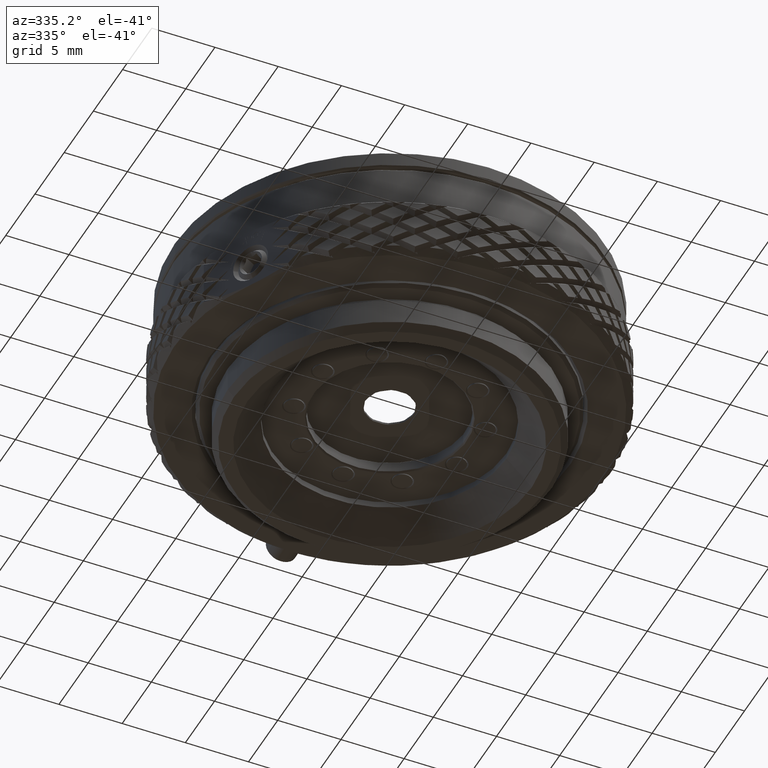
[diagram: clean part render]
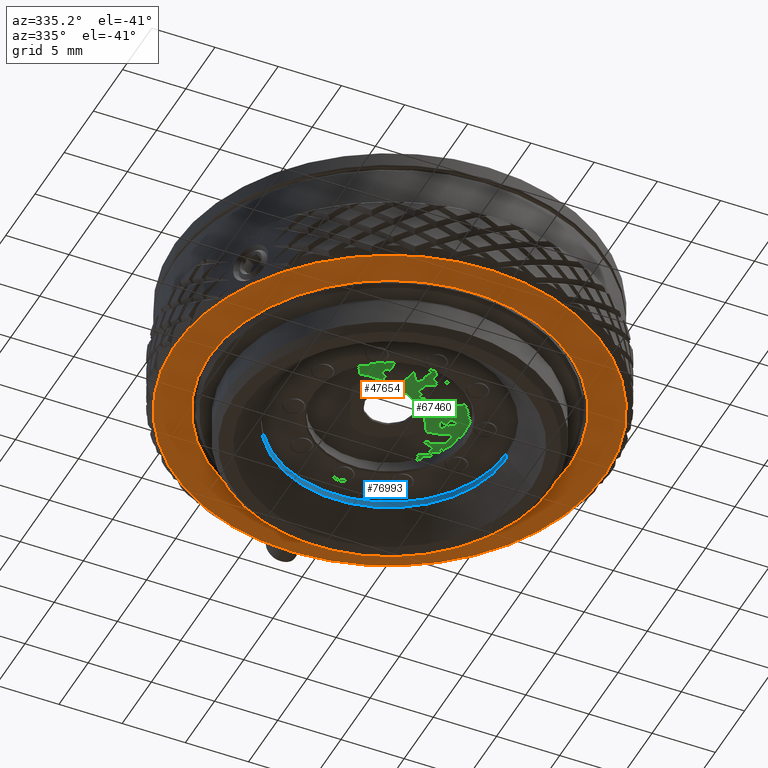
[diagram: same view with three faces highlighted in distinct colors, each labeled with its STEP entity id]
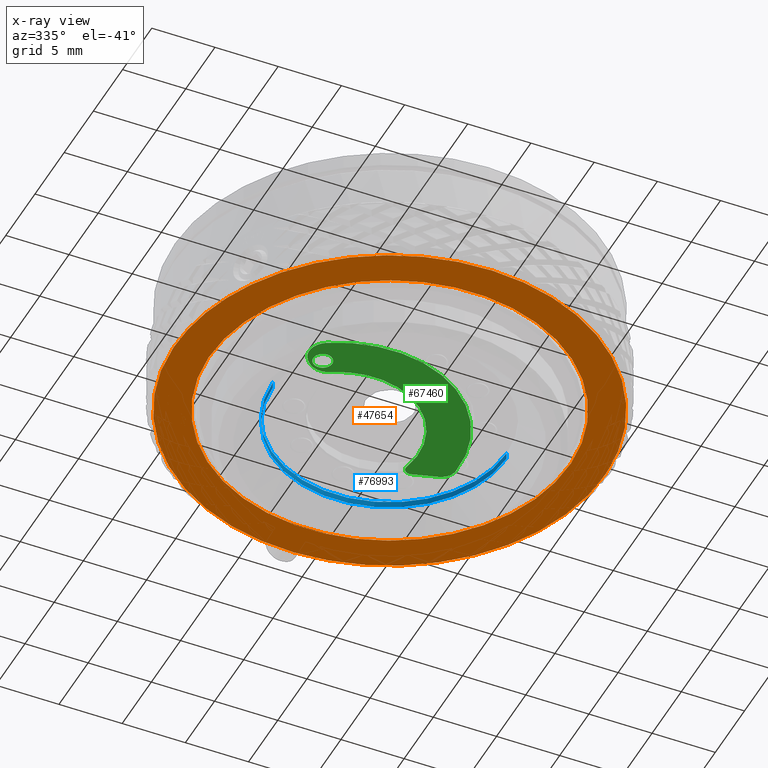
[diagram: x-ray of the same camera — body ghosted, the three highlighted faces saturated]
A machine part, auxiliary view with three faces highlighted in distinct colors.
The next image is the same camera in x-ray (body ghosted, the three faces saturated) — at least one of them is partly hidden behind the body in this view.
Their STEP definitions:

[orange] entity #47654 — the highlighted planar face has unit normal (0, 0, 1).
#995 = CARTESIAN_POINT ( 'NONE',  ( 0.000000000000000000, 0.000000000000000000, -4.150000000000000355 ) ) ;
#2328 = CARTESIAN_POINT ( 'NONE',  ( -14.72243186433542306, -8.500000000000076383, -4.150000000000000355 ) ) ;
#9874 = CIRCLE ( 'NONE', #77246, 14.25000000000003197 ) ;
#12894 = FACE_BOUND ( 'NONE', #60496, .T. ) ;
#14532 = CARTESIAN_POINT ( 'NONE',  ( 16.99999999999997158, 0.000000000000000000, -4.150000000000000355 ) ) ;
#16291 = DIRECTION ( 'NONE',  ( 1.000000000000000000, 0.000000000000000000, 0.000000000000000000 ) ) ;
#17184 = VERTEX_POINT ( 'NONE', #2328 ) ;
#18700 = AXIS2_PLACEMENT_3D ( 'NONE', #33750, #60038, #78553 ) ;
#18861 = CARTESIAN_POINT ( 'NONE',  ( 0.000000000000000000, 0.000000000000000000, -4.150000000000000355 ) ) ;
#20525 = CARTESIAN_POINT ( 'NONE',  ( 0.000000000000000000, 0.000000000000000000, -4.150000000000000355 ) ) ;
#21435 = ORIENTED_EDGE ( 'NONE', *, *, #65567, .T. ) ;
#23748 = ORIENTED_EDGE ( 'NONE', *, *, #43842, .T. ) ;
#25401 = PLANE ( 'NONE',  #70589 ) ;
#25909 = AXIS2_PLACEMENT_3D ( 'NONE', #18861, #72701, #58108 ) ;
#26399 = DIRECTION ( 'NONE',  ( 0.000000000000000000, 0.000000000000000000, 1.000000000000000000 ) ) ;
#33750 = CARTESIAN_POINT ( 'NONE',  ( 0.000000000000000000, 0.000000000000000000, -4.150000000000000355 ) ) ;
#35772 = CARTESIAN_POINT ( 'NONE',  ( 14.25000000000003197, 1.745121688784982172E-15, -4.150000000000000355 ) ) ;
#38877 = AXIS2_PLACEMENT_3D ( 'NONE', #995, #26399, #52669 ) ;
#40062 = DIRECTION ( 'NONE',  ( 0.000000000000000000, 0.000000000000000000, 1.000000000000000000 ) ) ;
#41606 = VERTEX_POINT ( 'NONE', #45875 ) ;
#43842 = EDGE_CURVE ( 'NONE', #17184, #78226, #68535, .T. ) ;
#45205 = VERTEX_POINT ( 'NONE', #35772 ) ;
#45875 = CARTESIAN_POINT ( 'NONE',  ( -14.25000000000003197, 0.000000000000000000, -4.150000000000000355 ) ) ;
#47654 = ADVANCED_FACE ( 'NONE', ( #12894, #65448 ), #25401, .F. ) ;
#48116 = VERTEX_POINT ( 'NONE', #14532 ) ;
#49072 = CARTESIAN_POINT ( 'NONE',  ( 0.000000000000000000, 0.000000000000000000, -4.150000000000000355 ) ) ;
#52669 = DIRECTION ( 'NONE',  ( 1.000000000000000000, 0.000000000000000000, 0.000000000000000000 ) ) ;
#54715 = AXIS2_PLACEMENT_3D ( 'NONE', #49072, #75312, #16291 ) ;
#55895 = CIRCLE ( 'NONE', #18700, 16.99999999999997158 ) ;
#58108 = DIRECTION ( 'NONE',  ( 1.000000000000000000, 2.664535259100375303E-15, 0.000000000000000000 ) ) ;
#58864 = CIRCLE ( 'NONE', #54715, 16.99999999999997158 ) ;
#59319 = DIRECTION ( 'NONE',  ( 0.000000000000000000, 0.000000000000000000, 1.000000000000000000 ) ) ;
#59654 = EDGE_CURVE ( 'NONE', #48116, #17184, #55895, .T. ) ;
#60038 = DIRECTION ( 'NONE',  ( -0.000000000000000000, -0.000000000000000000, -1.000000000000000000 ) ) ;
#60496 = EDGE_LOOP ( 'NONE', ( #68680, #67915 ) ) ;
#65448 = FACE_OUTER_BOUND ( 'NONE', #74081, .T. ) ;
#65567 = EDGE_CURVE ( 'NONE', #78226, #48116, #58864, .T. ) ;
#66303 = CARTESIAN_POINT ( 'NONE',  ( 0.000000000000000000, 0.000000000000000000, -4.150000000000000355 ) ) ;
#67915 = ORIENTED_EDGE ( 'NONE', *, *, #73149, .T. ) ;
#68535 = CIRCLE ( 'NONE', #25909, 16.99999999999997158 ) ;
#68680 = ORIENTED_EDGE ( 'NONE', *, *, #75430, .T. ) ;
#70589 = AXIS2_PLACEMENT_3D ( 'NONE', #66303, #40062, #79226 ) ;
#72701 = DIRECTION ( 'NONE',  ( -0.000000000000000000, -0.000000000000000000, -1.000000000000000000 ) ) ;
#73149 = EDGE_CURVE ( 'NONE', #45205, #41606, #9874, .T. ) ;
#74081 = EDGE_LOOP ( 'NONE', ( #23748, #21435, #76259 ) ) ;
#74613 = CIRCLE ( 'NONE', #38877, 14.25000000000003197 ) ;
#75312 = DIRECTION ( 'NONE',  ( -0.000000000000000000, -0.000000000000000000, -1.000000000000000000 ) ) ;
#75430 = EDGE_CURVE ( 'NONE', #41606, #45205, #74613, .T. ) ;
#76259 = ORIENTED_EDGE ( 'NONE', *, *, #59654, .T. ) ;
#77246 = AXIS2_PLACEMENT_3D ( 'NONE', #20525, #59319, #79122 ) ;
#78226 = VERTEX_POINT ( 'NONE', #81607 ) ;
#78553 = DIRECTION ( 'NONE',  ( 1.000000000000000000, 0.000000000000000000, 0.000000000000000000 ) ) ;
#79122 = DIRECTION ( 'NONE',  ( 1.000000000000000000, 0.000000000000000000, 0.000000000000000000 ) ) ;
#79226 = DIRECTION ( 'NONE',  ( 1.000000000000000000, 0.000000000000000000, -0.000000000000000000 ) ) ;
#81607 = CARTESIAN_POINT ( 'NONE',  ( -16.99999999999997158, 2.081899558550496730E-15, -4.150000000000000355 ) ) ;

[blue] entity #76993 — the highlighted cylindrical surface (partial cylindrical patch) has radius 9.25 mm, axis along (0, 0, 1).
#927 = LINE ( 'NONE', #60368, #19588 ) ;
#2297 = ORIENTED_EDGE ( 'NONE', *, *, #14872, .F. ) ;
#2447 = CYLINDRICAL_SURFACE ( 'NONE', #29311, 9.250000000000000000 ) ;
#4408 = AXIS2_PLACEMENT_3D ( 'NONE', #61479, #41284, #21843 ) ;
#6247 = VERTEX_POINT ( 'NONE', #49626 ) ;
#6515 = DIRECTION ( 'NONE',  ( -0.000000000000000000, -0.000000000000000000, 1.000000000000000000 ) ) ;
#13389 = CARTESIAN_POINT ( 'NONE',  ( -9.250000000000000000, 1.132798289211301501E-15, 0.000000000000000000 ) ) ;
#13667 = ORIENTED_EDGE ( 'NONE', *, *, #34264, .T. ) ;
#14872 = EDGE_CURVE ( 'NONE', #49909, #6247, #74169, .T. ) ;
#19093 = AXIS2_PLACEMENT_3D ( 'NONE', #46499, #72725, #59836 ) ;
#19588 = VECTOR ( 'NONE', #33211, 1000.000000000000000 ) ;
#19686 = ORIENTED_EDGE ( 'NONE', *, *, #38101, .F. ) ;
#20138 = ORIENTED_EDGE ( 'NONE', *, *, #75799, .T. ) ;
#21843 = DIRECTION ( 'NONE',  ( 1.000000000000000000, 0.000000000000000000, 0.000000000000000000 ) ) ;
#24809 = VERTEX_POINT ( 'NONE', #74724 ) ;
#29311 = AXIS2_PLACEMENT_3D ( 'NONE', #67896, #75658, #42541 ) ;
#33211 = DIRECTION ( 'NONE',  ( -0.000000000000000000, -0.000000000000000000, 1.000000000000000000 ) ) ;
#34264 = EDGE_CURVE ( 'NONE', #24809, #81231, #62142, .T. ) ;
#36327 = CARTESIAN_POINT ( 'NONE',  ( 9.250000000000000000, 0.000000000000000000, 1.999999999999994893 ) ) ;
#38101 = EDGE_CURVE ( 'NONE', #24809, #49909, #64673, .T. ) ;
#41284 = DIRECTION ( 'NONE',  ( -0.000000000000000000, -0.000000000000000000, -1.000000000000000000 ) ) ;
#42541 = DIRECTION ( 'NONE',  ( 1.000000000000000000, 0.000000000000000000, 0.000000000000000000 ) ) ;
#42772 = VECTOR ( 'NONE', #6515, 1000.000000000000000 ) ;
#46499 = CARTESIAN_POINT ( 'NONE',  ( 0.000000000000000000, 0.000000000000000000, 2.500000000000000000 ) ) ;
#49626 = CARTESIAN_POINT ( 'NONE',  ( 9.250000000000000000, 0.000000000000000000, 2.500000000000000000 ) ) ;
#49909 = VERTEX_POINT ( 'NONE', #52154 ) ;
#52154 = CARTESIAN_POINT ( 'NONE',  ( -9.250000000000000000, 1.132798289211301501E-15, 2.500000000000000000 ) ) ;
#54589 = EDGE_LOOP ( 'NONE', ( #19686, #13667, #20138, #2297 ) ) ;
#59836 = DIRECTION ( 'NONE',  ( 1.000000000000000000, 0.000000000000000000, 0.000000000000000000 ) ) ;
#60368 = CARTESIAN_POINT ( 'NONE',  ( 9.250000000000000000, 0.000000000000000000, 0.000000000000000000 ) ) ;
#61479 = CARTESIAN_POINT ( 'NONE',  ( 0.000000000000000000, 0.000000000000000000, 1.999999999999994893 ) ) ;
#62142 = CIRCLE ( 'NONE', #4408, 9.250000000000000000 ) ;
#63153 = FACE_OUTER_BOUND ( 'NONE', #54589, .T. ) ;
#64673 = LINE ( 'NONE', #13389, #42772 ) ;
#67896 = CARTESIAN_POINT ( 'NONE',  ( 0.000000000000000000, 0.000000000000000000, 0.000000000000000000 ) ) ;
#72725 = DIRECTION ( 'NONE',  ( -0.000000000000000000, -0.000000000000000000, -1.000000000000000000 ) ) ;
#74169 = CIRCLE ( 'NONE', #19093, 9.250000000000000000 ) ;
#74724 = CARTESIAN_POINT ( 'NONE',  ( -9.250000000000000000, 1.132798289211301501E-15, 1.999999999999994893 ) ) ;
#75658 = DIRECTION ( 'NONE',  ( -0.000000000000000000, -0.000000000000000000, 1.000000000000000000 ) ) ;
#75799 = EDGE_CURVE ( 'NONE', #81231, #6247, #927, .T. ) ;
#76993 = ADVANCED_FACE ( 'NONE', ( #63153 ), #2447, .F. ) ;
#81231 = VERTEX_POINT ( 'NONE', #36327 ) ;

[green] entity #67460 — the highlighted planar face has unit normal (0, 0, 1).
#967 = CARTESIAN_POINT ( 'NONE',  ( -6.389340301055798754, -2.605002450996976027, -1.500000000000000000 ) ) ;
#1058 = DIRECTION ( 'NONE',  ( -2.193465197359583289E-18, 6.538227302660444188E-18, -1.000000000000000000 ) ) ;
#1247 = AXIS2_PLACEMENT_3D ( 'NONE', #16459, #75927, #56957 ) ;
#5522 = CARTESIAN_POINT ( 'NONE',  ( 3.951659026361565630, 6.034081970587055643, -1.500000000000000000 ) ) ;
#5767 = ORIENTED_EDGE ( 'NONE', *, *, #8912, .T. ) ;
#6462 = ORIENTED_EDGE ( 'NONE', *, *, #60245, .F. ) ;
#7093 = DIRECTION ( 'NONE',  ( -0.4368701808243428686, 0.8995245661495331335, 0.000000000000000000 ) ) ;
#8474 = VERTEX_POINT ( 'NONE', #8816 ) ;
#8816 = CARTESIAN_POINT ( 'NONE',  ( 6.727397174603402696, 5.010674798145960729, -1.500000000000000000 ) ) ;
#8912 = EDGE_CURVE ( 'NONE', #51541, #41918, #75672, .T. ) ;
#11976 = DIRECTION ( 'NONE',  ( -0.9382590085631673515, 0.3459335671051050332, 4.319830774745732219E-18 ) ) ;
#12975 = CARTESIAN_POINT ( 'NONE',  ( 7.512181098517611844, 3.869601528755528097, -1.500000000000000000 ) ) ;
#15495 = VECTOR ( 'NONE', #50844, 1000.000000000000000 ) ;
#16329 = CIRCLE ( 'NONE', #64480, 1.500000000000000222 ) ;
#16459 = CARTESIAN_POINT ( 'NONE',  ( -6.657395614066074607, -2.163118960624643705, -1.500000000000000000 ) ) ;
#18498 = CARTESIAN_POINT ( 'NONE',  ( -6.985048249684330912, -1.488475536012494826, -1.500000000000000000 ) ) ;
#20312 = ORIENTED_EDGE ( 'NONE', *, *, #51906, .T. ) ;
#20457 = DIRECTION ( 'NONE',  ( 2.193465197359582904E-18, -6.538227302660443417E-18, 1.000000000000000000 ) ) ;
#22848 = CARTESIAN_POINT ( 'NONE',  ( 0.6979948657501009457, -1.743567907530704009, -1.500000000000000000 ) ) ;
#23013 = VERTEX_POINT ( 'NONE', #22848 ) ;
#23592 = VERTEX_POINT ( 'NONE', #25701 ) ;
#25701 = CARTESIAN_POINT ( 'NONE',  ( -7.374984374968407863, -4.021450318140683322, -1.500000000000000000 ) ) ;
#26921 = CARTESIAN_POINT ( 'NONE',  ( -6.657395614066074607, -2.163118960624643705, -1.500000000000000000 ) ) ;
#27243 = CIRCLE ( 'NONE', #42420, 6.375000000000000888 ) ;
#27371 = CIRCLE ( 'NONE', #1247, 0.7499999999999985567 ) ;
#29215 = DIRECTION ( 'NONE',  ( -2.193465197359583289E-18, 6.538227302660444188E-18, -1.000000000000000000 ) ) ;
#29339 = CARTESIAN_POINT ( 'NONE',  ( -2.087052537005079866, 3.990901201672572451, -1.500000000000000000 ) ) ;
#30169 = EDGE_CURVE ( 'NONE', #55243, #23013, #47992, .T. ) ;
#30504 = CIRCLE ( 'NONE', #78610, 0.7499999999999985567 ) ;
#30991 = CARTESIAN_POINT ( 'NONE',  ( -2.087052537005079866, 3.990901201672572451, -1.500000000000000000 ) ) ;
#30999 = EDGE_CURVE ( 'NONE', #23013, #41918, #27243, .T. ) ;
#31028 = DIRECTION ( 'NONE',  ( 2.193465197359583289E-18, -6.538227302660444188E-18, 1.000000000000000000 ) ) ;
#33316 = CARTESIAN_POINT ( 'NONE',  ( 4.182755878791853732, 5.144212707382096461, -1.500000000000000000 ) ) ;
#33375 = EDGE_CURVE ( 'NONE', #71744, #63598, #30504, .T. ) ;
#33697 = VECTOR ( 'NONE', #11976, 1000.000000000000114 ) ;
#33828 = CARTESIAN_POINT ( 'NONE',  ( -2.087052537005079866, 3.990901201672572451, -1.500000000000000000 ) ) ;
#34208 = CARTESIAN_POINT ( 'NONE',  ( 6.312276894077275990, 3.884763987870158530, -1.500000000000000000 ) ) ;
#34217 = ORIENTED_EDGE ( 'NONE', *, *, #30999, .F. ) ;
#34381 = CARTESIAN_POINT ( 'NONE',  ( 4.674505558462200838, 5.234668511751470632, -1.500000000000000000 ) ) ;
#35665 = DIRECTION ( 'NONE',  ( -0.4368701808243407037, 0.8995245661495343548, 0.000000000000000000 ) ) ;
#36889 = EDGE_LOOP ( 'NONE', ( #72109, #51495 ) ) ;
#37070 = EDGE_CURVE ( 'NONE', #55243, #54020, #55035, .T. ) ;
#38942 = DIRECTION ( 'NONE',  ( -2.193465197359583289E-18, 6.538227302660444188E-18, -1.000000000000000000 ) ) ;
#39177 = LINE ( 'NONE', #83568, #15495 ) ;
#40334 = DIRECTION ( 'NONE',  ( -0.4368701808243420914, 0.8995245661495335776, 6.839555615215053001E-18 ) ) ;
#41504 = EDGE_LOOP ( 'NONE', ( #63262, #49898, #56704, #60788, #6462, #20312, #51985, #5767, #34217 ) ) ;
#41918 = VERTEX_POINT ( 'NONE', #43167 ) ;
#42420 = AXIS2_PLACEMENT_3D ( 'NONE', #30991, #43105, #57252 ) ;
#43105 = DIRECTION ( 'NONE',  ( -2.193465197359583289E-18, 6.538227302660444188E-18, -1.000000000000000000 ) ) ;
#43167 = CARTESIAN_POINT ( 'NONE',  ( -5.569856917427089549, -1.348639850488490888, -1.500000000000000000 ) ) ;
#43870 = AXIS2_PLACEMENT_3D ( 'NONE', #33828, #20457, #40334 ) ;
#44553 = CIRCLE ( 'NONE', #59662, 1.199999999999999956 ) ;
#46300 = VERTEX_POINT ( 'NONE', #12975 ) ;
#47185 = DIRECTION ( 'NONE',  ( -0.4368701808243424800, 0.8995245661495334666, 0.000000000000000000 ) ) ;
#47992 = CIRCLE ( 'NONE', #78259, 6.375000000000000888 ) ;
#49830 = CARTESIAN_POINT ( 'NONE',  ( -6.329742978447818302, -2.837762385236792362, -1.500000000000000000 ) ) ;
#49898 = ORIENTED_EDGE ( 'NONE', *, *, #37070, .T. ) ;
#50020 = CARTESIAN_POINT ( 'NONE',  ( -7.626013834588829532, -1.725733100420692612, -1.500000000000000000 ) ) ;
#50071 = CARTESIAN_POINT ( 'NONE',  ( 4.847472342014753188, 5.703798016033055696, -1.500000000000000000 ) ) ;
#50844 = DIRECTION ( 'NONE',  ( -0.6958581951661126919, -0.7181792062014608069, -3.169278160795074956E-18 ) ) ;
#50905 = AXIS2_PLACEMENT_3D ( 'NONE', #34381, #29215, #35665 ) ;
#51495 = ORIENTED_EDGE ( 'NONE', *, *, #33375, .F. ) ;
#51541 = VERTEX_POINT ( 'NONE', #67963 ) ;
#51906 = EDGE_CURVE ( 'NONE', #23592, #63530, #16329, .T. ) ;
#51985 = ORIENTED_EDGE ( 'NONE', *, *, #75893, .F. ) ;
#52152 = EDGE_CURVE ( 'NONE', #63598, #71744, #27371, .T. ) ;
#54020 = VERTEX_POINT ( 'NONE', #50071 ) ;
#55035 = CIRCLE ( 'NONE', #50905, 0.4999999999999998335 ) ;
#55243 = VERTEX_POINT ( 'NONE', #33316 ) ;
#56704 = ORIENTED_EDGE ( 'NONE', *, *, #83276, .F. ) ;
#56864 = DIRECTION ( 'NONE',  ( -0.4368701808243421469, 0.8995245661495336886, 0.000000000000000000 ) ) ;
#56957 = DIRECTION ( 'NONE',  ( -0.4368701808243424800, 0.8995245661495334666, 0.000000000000000000 ) ) ;
#57097 = CARTESIAN_POINT ( 'NONE',  ( -2.087052537005079866, 3.990901201672572451, -1.500000000000000000 ) ) ;
#57252 = DIRECTION ( 'NONE',  ( -0.4368701808243420914, 0.8995245661495335776, 0.000000000000000000 ) ) ;
#59662 = AXIS2_PLACEMENT_3D ( 'NONE', #34208, #1058, #7093 ) ;
#60245 = EDGE_CURVE ( 'NONE', #23592, #46300, #65454, .T. ) ;
#60788 = ORIENTED_EDGE ( 'NONE', *, *, #81109, .T. ) ;
#63262 = ORIENTED_EDGE ( 'NONE', *, *, #30169, .F. ) ;
#63530 = VERTEX_POINT ( 'NONE', #50020 ) ;
#63598 = VERTEX_POINT ( 'NONE', #18498 ) ;
#64480 = AXIS2_PLACEMENT_3D ( 'NONE', #64772, #38942, #72489 ) ;
#64772 = CARTESIAN_POINT ( 'NONE',  ( -6.548745025286637933, -2.769520393169861538, -1.500000000000000000 ) ) ;
#65454 = CIRCLE ( 'NONE', #73696, 9.599999999999999645 ) ;
#66561 = FACE_OUTER_BOUND ( 'NONE', #41504, .T. ) ;
#67460 = ADVANCED_FACE ( 'NONE', ( #84668, #66561 ), #71717, .F. ) ;
#67696 = DIRECTION ( 'NONE',  ( -0.4368701808243387608, 0.8995245661495352429, 0.000000000000000000 ) ) ;
#67963 = CARTESIAN_POINT ( 'NONE',  ( -7.466609110357989465, -1.561215158247806656, -1.500000000000000000 ) ) ;
#71717 = PLANE ( 'NONE',  #43870 ) ;
#71744 = VERTEX_POINT ( 'NONE', #49830 ) ;
#72109 = ORIENTED_EDGE ( 'NONE', *, *, #52152, .F. ) ;
#72489 = DIRECTION ( 'NONE',  ( -0.4368701808243433682, 0.8995245661495329115, 0.000000000000000000 ) ) ;
#73696 = AXIS2_PLACEMENT_3D ( 'NONE', #29339, #31028, #56864 ) ;
#75672 = CIRCLE ( 'NONE', #85229, 1.500000000000000000 ) ;
#75893 = EDGE_CURVE ( 'NONE', #51541, #63530, #39177, .T. ) ;
#75927 = DIRECTION ( 'NONE',  ( -2.193465197359583289E-18, 6.538227302660444188E-18, -1.000000000000000000 ) ) ;
#78154 = DIRECTION ( 'NONE',  ( -2.193465197359583289E-18, 6.538227302660444188E-18, -1.000000000000000000 ) ) ;
#78259 = AXIS2_PLACEMENT_3D ( 'NONE', #57097, #78154, #83366 ) ;
#78610 = AXIS2_PLACEMENT_3D ( 'NONE', #26921, #79901, #47185 ) ;
#79788 = DIRECTION ( 'NONE',  ( -2.193465197359583289E-18, 6.538227302660444188E-18, -1.000000000000000000 ) ) ;
#79901 = DIRECTION ( 'NONE',  ( -2.193465197359583289E-18, 6.538227302660444188E-18, -1.000000000000000000 ) ) ;
#81109 = EDGE_CURVE ( 'NONE', #8474, #46300, #44553, .T. ) ;
#83276 = EDGE_CURVE ( 'NONE', #8474, #54020, #83933, .T. ) ;
#83366 = DIRECTION ( 'NONE',  ( -0.4368701808243420914, 0.8995245661495335776, 0.000000000000000000 ) ) ;
#83568 = CARTESIAN_POINT ( 'NONE',  ( -6.523148531189049137, -0.5874912378617397346, -1.500000000000000000 ) ) ;
#83933 = LINE ( 'NONE', #5522, #33697 ) ;
#84668 = FACE_BOUND ( 'NONE', #36889, .T. ) ;
#85229 = AXIS2_PLACEMENT_3D ( 'NONE', #967, #79788, #67696 ) ;